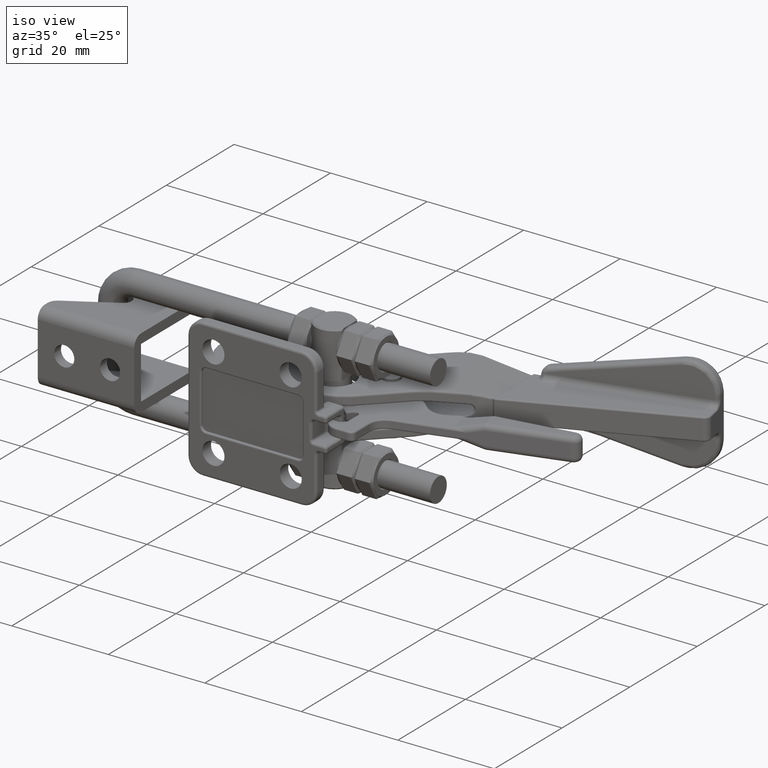
[diagram: clean part render]
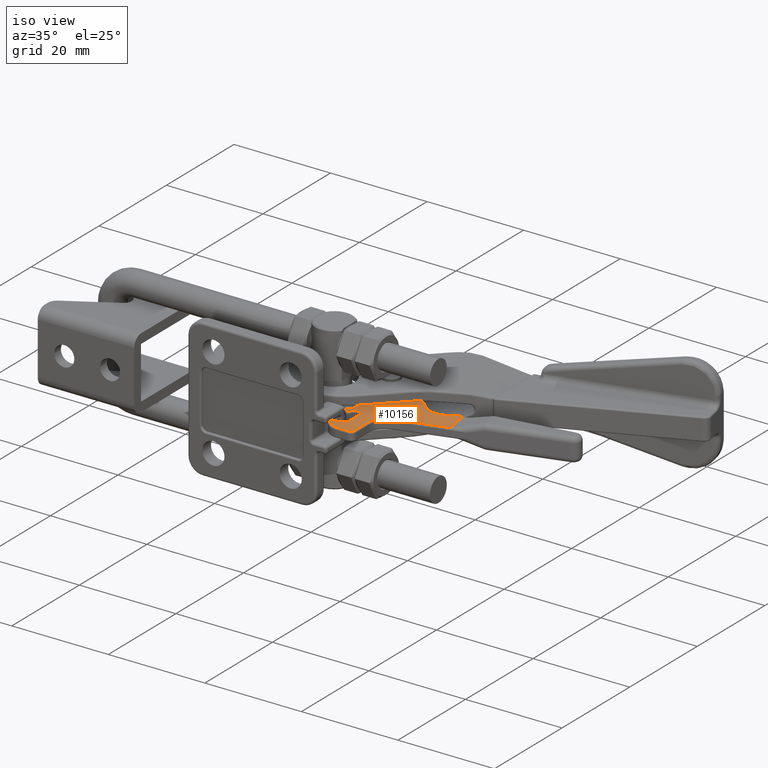
[diagram: same view with one face highlighted and labeled with its STEP entity id]
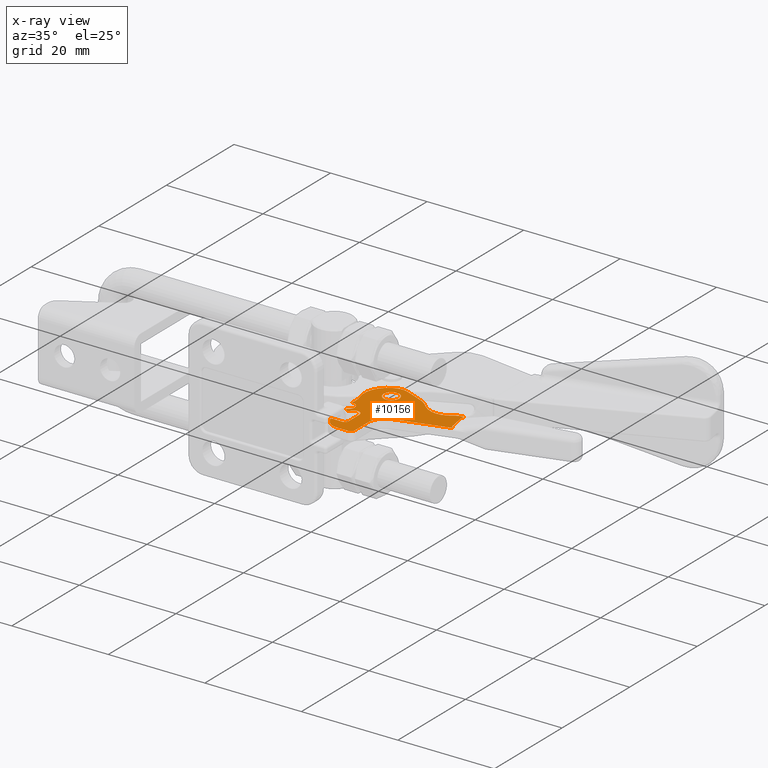
[diagram: x-ray of the same camera — body ghosted, the highlighted face saturated]
A machine part, iso view. The second image highlights one B-rep face of the part: STEP entity #10156.
The next image is the same camera in x-ray: the body ghosted, the highlighted face saturated — about 0% of this face is hidden behind the body in this view.
In plain terms, the highlighted planar face has unit normal (-0, -0, 1).
Its self-contained STEP definition (entity closure, byte-faithful):
#281=ELLIPSE('',#11136,16.2910343805634,3.28690624551075);
#282=ELLIPSE('',#11149,24.4621710384554,4.01621982107466);
#698=PLANE('',#11135);
#1119=LINE('',#18671,#1678);
#1120=LINE('',#18712,#1679);
#1121=LINE('',#18717,#1680);
#1122=LINE('',#18721,#1681);
#1123=LINE('',#18725,#1682);
#1124=LINE('',#18730,#1683);
#1125=LINE('',#18734,#1684);
#1126=LINE('',#18738,#1685);
#1127=LINE('',#18742,#1686);
#1128=LINE('',#18746,#1687);
#1129=LINE('',#18750,#1688);
#1130=LINE('',#18754,#1689);
#1131=LINE('',#18758,#1690);
#1678=VECTOR('',#13187,0.784645032631566);
#1679=VECTOR('',#13190,3.39002437134424);
#1680=VECTOR('',#13195,1.25012658674413);
#1681=VECTOR('',#13198,4.02103685123286);
#1682=VECTOR('',#13201,0.453546172397678);
#1683=VECTOR('',#13206,0.825948223247436);
#1684=VECTOR('',#13209,0.687219900329533);
#1685=VECTOR('',#13212,3.0810000000001);
#1686=VECTOR('',#13215,2.05399999999983);
#1687=VECTOR('',#13218,0.93743086693216);
#1688=VECTOR('',#13221,2.45038631699998);
#1689=VECTOR('',#13224,4.10799999999995);
#1690=VECTOR('',#13227,11.150687883678);
#2018=FACE_BOUND('',#3053,.T.);
#2341=FACE_OUTER_BOUND('',#3052,.T.);
#3052=EDGE_LOOP('',(#7809,#7810,#7811,#7812,#7813,#7814,#7815,#7816,#7817,
#7818,#7819,#7820,#7821,#7822,#7823,#7824,#7825,#7826,#7827,#7828,#7829,
#7830,#7831,#7832,#7833,#7834,#7835,#7836,#7837));
#3053=EDGE_LOOP('',(#7838));
#3746=CIRCLE('',#11051,1.3351);
#3796=CIRCLE('',#11133,2.7729);
#3797=CIRCLE('',#11137,4.4161);
#3798=CIRCLE('',#11138,4.8269);
#3799=CIRCLE('',#11139,3.2864);
#3800=CIRCLE('',#11140,5.019801871872);
#3801=CIRCLE('',#11141,4.4161);
#3802=CIRCLE('',#11142,0.2054000000026);
#3803=CIRCLE('',#11143,1.07835);
#3804=CIRCLE('',#11144,0.8216);
#3805=CIRCLE('',#11145,0.2053999999966);
#3806=CIRCLE('',#11146,2.7729);
#3807=CIRCLE('',#11147,0.7189000000001);
#3808=CIRCLE('',#11148,3.3891);
#3809=CIRCLE('',#11150,1.625351069519);
#4483=VERTEX_POINT('',#18347);
#4486=VERTEX_POINT('',#18365);
#4509=VERTEX_POINT('',#18664);
#4510=VERTEX_POINT('',#18666);
#4511=VERTEX_POINT('',#18670);
#4512=VERTEX_POINT('',#18710);
#4513=VERTEX_POINT('',#18711);
#4514=VERTEX_POINT('',#18714);
#4515=VERTEX_POINT('',#18716);
#4516=VERTEX_POINT('',#18718);
#4517=VERTEX_POINT('',#18720);
#4518=VERTEX_POINT('',#18722);
#4519=VERTEX_POINT('',#18724);
#4520=VERTEX_POINT('',#18726);
#4521=VERTEX_POINT('',#18729);
#4522=VERTEX_POINT('',#18731);
#4523=VERTEX_POINT('',#18733);
#4524=VERTEX_POINT('',#18735);
#4525=VERTEX_POINT('',#18737);
#4526=VERTEX_POINT('',#18739);
#4527=VERTEX_POINT('',#18741);
#4528=VERTEX_POINT('',#18743);
#4529=VERTEX_POINT('',#18745);
#4530=VERTEX_POINT('',#18747);
#4531=VERTEX_POINT('',#18749);
#4532=VERTEX_POINT('',#18751);
#4533=VERTEX_POINT('',#18753);
#4534=VERTEX_POINT('',#18755);
#4535=VERTEX_POINT('',#18757);
#4536=VERTEX_POINT('',#18760);
#5618=EDGE_CURVE('',#4486,#4483,#3746,.T.);
#5680=EDGE_CURVE('',#4509,#4510,#3796,.T.);
#5681=EDGE_CURVE('',#4511,#4509,#1119,.T.);
#5683=EDGE_CURVE('',#4512,#4513,#1120,.T.);
#5684=EDGE_CURVE('',#4513,#4511,#281,.T.);
#5685=EDGE_CURVE('',#4510,#4514,#3797,.T.);
#5686=EDGE_CURVE('',#4514,#4515,#1121,.T.);
#5687=EDGE_CURVE('',#4515,#4516,#3798,.T.);
#5688=EDGE_CURVE('',#4516,#4517,#1122,.T.);
#5689=EDGE_CURVE('',#4517,#4518,#3799,.T.);
#5690=EDGE_CURVE('',#4518,#4519,#1123,.T.);
#5691=EDGE_CURVE('',#4519,#4520,#3800,.T.);
#5692=EDGE_CURVE('',#4520,#4486,#3801,.T.);
#5693=EDGE_CURVE('',#4483,#4521,#1124,.T.);
#5694=EDGE_CURVE('',#4521,#4522,#3802,.T.);
#5695=EDGE_CURVE('',#4522,#4523,#1125,.T.);
#5696=EDGE_CURVE('',#4523,#4524,#3803,.T.);
#5697=EDGE_CURVE('',#4525,#4524,#1126,.T.);
#5698=EDGE_CURVE('',#4525,#4526,#3804,.T.);
#5699=EDGE_CURVE('',#4527,#4526,#1127,.T.);
#5700=EDGE_CURVE('',#4527,#4528,#3805,.T.);
#5701=EDGE_CURVE('',#4528,#4529,#1128,.T.);
#5702=EDGE_CURVE('',#4529,#4530,#3806,.T.);
#5703=EDGE_CURVE('',#4531,#4530,#1129,.T.);
#5704=EDGE_CURVE('',#4531,#4532,#3807,.T.);
#5705=EDGE_CURVE('',#4533,#4532,#1130,.T.);
#5706=EDGE_CURVE('',#4533,#4534,#3808,.T.);
#5707=EDGE_CURVE('',#4534,#4535,#1131,.T.);
#5708=EDGE_CURVE('',#4512,#4535,#282,.F.);
#5709=EDGE_CURVE('',#4536,#4536,#3809,.T.);
#7809=ORIENTED_EDGE('',*,*,#5683,.T.);
#7810=ORIENTED_EDGE('',*,*,#5684,.T.);
#7811=ORIENTED_EDGE('',*,*,#5681,.T.);
#7812=ORIENTED_EDGE('',*,*,#5680,.T.);
#7813=ORIENTED_EDGE('',*,*,#5685,.T.);
#7814=ORIENTED_EDGE('',*,*,#5686,.T.);
#7815=ORIENTED_EDGE('',*,*,#5687,.T.);
#7816=ORIENTED_EDGE('',*,*,#5688,.T.);
#7817=ORIENTED_EDGE('',*,*,#5689,.T.);
#7818=ORIENTED_EDGE('',*,*,#5690,.T.);
#7819=ORIENTED_EDGE('',*,*,#5691,.T.);
#7820=ORIENTED_EDGE('',*,*,#5692,.T.);
#7821=ORIENTED_EDGE('',*,*,#5618,.T.);
#7822=ORIENTED_EDGE('',*,*,#5693,.T.);
#7823=ORIENTED_EDGE('',*,*,#5694,.T.);
#7824=ORIENTED_EDGE('',*,*,#5695,.T.);
#7825=ORIENTED_EDGE('',*,*,#5696,.T.);
#7826=ORIENTED_EDGE('',*,*,#5697,.F.);
#7827=ORIENTED_EDGE('',*,*,#5698,.T.);
#7828=ORIENTED_EDGE('',*,*,#5699,.F.);
#7829=ORIENTED_EDGE('',*,*,#5700,.T.);
#7830=ORIENTED_EDGE('',*,*,#5701,.T.);
#7831=ORIENTED_EDGE('',*,*,#5702,.T.);
#7832=ORIENTED_EDGE('',*,*,#5703,.F.);
#7833=ORIENTED_EDGE('',*,*,#5704,.T.);
#7834=ORIENTED_EDGE('',*,*,#5705,.F.);
#7835=ORIENTED_EDGE('',*,*,#5706,.T.);
#7836=ORIENTED_EDGE('',*,*,#5707,.T.);
#7837=ORIENTED_EDGE('',*,*,#5708,.F.);
#7838=ORIENTED_EDGE('',*,*,#5709,.T.);
#10156=ADVANCED_FACE('',(#2341,#2018),#698,.T.);
#11051=AXIS2_PLACEMENT_3D('',#18403,#13012,#13013);
#11133=AXIS2_PLACEMENT_3D('',#18668,#13183,#13184);
#11135=AXIS2_PLACEMENT_3D('',#18709,#13188,#13189);
#11136=AXIS2_PLACEMENT_3D('',#18713,#13191,#13192);
#11137=AXIS2_PLACEMENT_3D('',#18715,#13193,#13194);
#11138=AXIS2_PLACEMENT_3D('',#18719,#13196,#13197);
#11139=AXIS2_PLACEMENT_3D('',#18723,#13199,#13200);
#11140=AXIS2_PLACEMENT_3D('',#18727,#13202,#13203);
#11141=AXIS2_PLACEMENT_3D('',#18728,#13204,#13205);
#11142=AXIS2_PLACEMENT_3D('',#18732,#13207,#13208);
#11143=AXIS2_PLACEMENT_3D('',#18736,#13210,#13211);
#11144=AXIS2_PLACEMENT_3D('',#18740,#13213,#13214);
#11145=AXIS2_PLACEMENT_3D('',#18744,#13216,#13217);
#11146=AXIS2_PLACEMENT_3D('',#18748,#13219,#13220);
#11147=AXIS2_PLACEMENT_3D('',#18752,#13222,#13223);
#11148=AXIS2_PLACEMENT_3D('',#18756,#13225,#13226);
#11149=AXIS2_PLACEMENT_3D('',#18759,#13228,#13229);
#11150=AXIS2_PLACEMENT_3D('',#18761,#13230,#13231);
#13012=DIRECTION('center_axis',(0.,0.,-1.));
#13013=DIRECTION('ref_axis',(-0.184703680974493,0.982794256309261,0.));
#13183=DIRECTION('center_axis',(0.,0.,1.));
#13184=DIRECTION('ref_axis',(-0.165047605863299,0.986285601536793,0.));
#13187=DIRECTION('',(-0.986285601537344,-0.165047605860007,0.));
#13188=DIRECTION('center_axis',(0.,0.,1.));
#13189=DIRECTION('ref_axis',(1.,0.,0.));
#13190=DIRECTION('',(-0.165047605861207,0.986285601537143,0.));
#13191=DIRECTION('center_axis',(-1.96015357480331E-13,4.20512153881486E-14,
-1.));
#13192=DIRECTION('ref_axis',(0.988674035034475,0.150078820786447,-1.87484297590714E-13));
#13193=DIRECTION('center_axis',(0.,0.,-1.));
#13194=DIRECTION('ref_axis',(0.62251701028537,-0.782606268761862,0.));
#13195=DIRECTION('',(-0.742051848678916,0.670342489979714,0.));
#13196=DIRECTION('center_axis',(0.,0.,1.));
#13197=DIRECTION('ref_axis',(0.670342489988594,0.742051848670894,0.));
#13198=DIRECTION('',(-0.926571280943953,0.376119211593722,0.));
#13199=DIRECTION('center_axis',(0.,0.,1.));
#13200=DIRECTION('ref_axis',(0.376119211593893,0.926571280943883,0.));
#13201=DIRECTION('',(-0.926571280959424,-0.376119211555609,0.));
#13202=DIRECTION('center_axis',(0.,0.,1.));
#13203=DIRECTION('ref_axis',(-0.428255032335312,0.903657914965326,0.));
#13204=DIRECTION('center_axis',(0.,0.,-1.));
#13205=DIRECTION('ref_axis',(0.941202495448575,0.337842955470991,0.));
#13206=DIRECTION('',(0.766044443117731,-0.642787609688026,-8.62829100138035E-13));
#13207=DIRECTION('center_axis',(-1.402174564564E-11,-8.855839355141E-12,
1.));
#13208=DIRECTION('ref_axis',(-0.642787609696186,-0.766044443110883,-1.57969708944173E-11));
#13209=DIRECTION('',(0.642787609686506,0.766044443119006,-1.03846142945501E-12));
#13210=DIRECTION('center_axis',(0.,0.,-1.));
#13211=DIRECTION('ref_axis',(-0.766044443127903,0.642787609675903,0.));
#13212=DIRECTION('',(0.,1.,0.));
#13213=DIRECTION('center_axis',(0.,0.,-1.));
#13214=DIRECTION('ref_axis',(1.,0.,0.));
#13215=DIRECTION('',(1.,1.66046987909E-13,-1.902621736458E-14));
#13216=DIRECTION('center_axis',(-1.475973225857E-12,3.689933064642E-13,
1.));
#13217=DIRECTION('ref_axis',(3.320939758232E-11,1.,-3.68993306415184E-13));
#13218=DIRECTION('',(0.513336470445789,-0.858187431806281,0.));
#13219=DIRECTION('center_axis',(0.,0.,1.));
#13220=DIRECTION('ref_axis',(-0.858187431800664,-0.513336470455179,0.));
#13221=DIRECTION('',(-1.,0.,0.));
#13222=DIRECTION('center_axis',(0.,0.,1.));
#13223=DIRECTION('ref_axis',(-9.488399309078E-12,-1.,0.));
#13224=DIRECTION('',(5.534899596963E-14,-1.,0.));
#13225=DIRECTION('center_axis',(0.,0.,-1.));
#13226=DIRECTION('ref_axis',(-1.,-7.044417668862E-13,0.));
#13227=DIRECTION('',(0.961261695938291,0.275637355817097,0.));
#13228=DIRECTION('center_axis',(-1.07498782402765E-9,-9.92111533582601E-10,
-1.));
#13229=DIRECTION('ref_axis',(0.955345301042404,0.29549171862541,-1.32014530848903E-9));
#13230=DIRECTION('center_axis',(0.,0.,-1.));
#13231=DIRECTION('ref_axis',(1.,0.,0.));
#18347=CARTESIAN_POINT('',(1271.34998035828,650.11986639666,0.924300000000031));
#18365=CARTESIAN_POINT('',(1270.703665536,652.7058546453,0.9243));
#18403=CARTESIAN_POINT('Origin',(1270.950263421,651.3937260337,0.9243));
#18664=CARTESIAN_POINT('',(1289.111232252,658.8802799124,0.9243));
#18666=CARTESIAN_POINT('',(1287.842715341,658.3154974909,0.9243));
#18668=CARTESIAN_POINT('Origin',(1289.568892759,656.1454085679,0.9243));
#18670=CARTESIAN_POINT('',(1289.88511635,659.0097836965,0.9243));
#18671=CARTESIAN_POINT('',(1289.88511635,659.0097836965,0.9243));
#18709=CARTESIAN_POINT('Origin',(1282.133318502,717.8339134774,0.9243));
#18710=CARTESIAN_POINT('',(1290.167878815,654.8910425357,0.9243));
#18711=CARTESIAN_POINT('',(1289.608363408,658.2345747619,0.9243));
#18712=CARTESIAN_POINT('',(1290.167878815,654.8910425357,0.9243));
#18713=CARTESIAN_POINT('Origin',(1305.71331709482,660.68935162036,0.924299999996969));
#18714=CARTESIAN_POINT('',(1282.133318502,658.4945898654,0.9243));
#18715=CARTESIAN_POINT('Origin',(1285.093617972,661.7715650343,0.9243));
#18716=CARTESIAN_POINT('',(1281.205659757,659.3326028341,0.9243));
#18717=CARTESIAN_POINT('',(1282.133318502,658.4945898654,0.9243));
#18718=CARTESIAN_POINT('',(1279.785473415,660.2232596818,0.9243));
#18719=CARTESIAN_POINT('Origin',(1277.969983593,655.7507927658,0.9243));
#18720=CARTESIAN_POINT('',(1276.059696149,661.735648892,0.9243));
#18721=CARTESIAN_POINT('',(1279.785473415,660.2232596817,0.9243));
#18722=CARTESIAN_POINT('',(1273.587539795,661.735648892,0.9243));
#18723=CARTESIAN_POINT('Origin',(1274.823617972,658.6905650343,0.9243));
#18724=CARTESIAN_POINT('',(1273.167296937,661.5650614634,0.9243));
#18725=CARTESIAN_POINT('',(1273.587539795,661.735648892,0.9243));
#18726=CARTESIAN_POINT('',(1270.592402302,655.3329730692,0.9243));
#18727=CARTESIAN_POINT('Origin',(1275.31705235,657.0288777701,0.9243));
#18728=CARTESIAN_POINT('Origin',(1266.435957961,653.8410247936,0.9243));
#18729=CARTESIAN_POINT('',(1271.982693406,649.5889571137,0.9242999999993));
#18730=CARTESIAN_POINT('',(1271.349980362,650.1198663958,0.9243));
#18731=CARTESIAN_POINT('',(1272.27206751,649.6142740673,0.9243000000022));
#18732=CARTESIAN_POINT('Origin',(1272.114721981,649.7463026423,0.9243000000011));
#18733=CARTESIAN_POINT('',(1272.713803947,650.1407150532,0.9243));
#18734=CARTESIAN_POINT('',(1272.27206751,649.6142740673,0.9243000000007));
#18735=CARTESIAN_POINT('',(1274.618217972,649.4475650343,0.9243));
#18736=CARTESIAN_POINT('Origin',(1273.539867972,649.4475650343,0.9243));
#18737=CARTESIAN_POINT('',(1274.618217972,646.3665650343,0.9243));
#18738=CARTESIAN_POINT('',(1274.618217972,646.3665650343,0.9243));
#18739=CARTESIAN_POINT('',(1273.796617972,645.5449650343,0.9243));
#18740=CARTESIAN_POINT('Origin',(1273.796617972,646.3665650343,0.9243));
#18741=CARTESIAN_POINT('',(1271.742617972,645.5449650343,0.9243000000001));
#18742=CARTESIAN_POINT('',(1271.742617972,645.5449650343,0.9243000000001));
#18743=CARTESIAN_POINT('',(1271.566346273,645.2341257233,0.9243));
#18744=CARTESIAN_POINT('Origin',(1271.742617972,645.3395650343,0.9243000000002));
#18745=CARTESIAN_POINT('',(1272.047563726,644.4296343354,0.9243));
#18746=CARTESIAN_POINT('',(1271.566346273,645.2341257233,0.9243));
#18747=CARTESIAN_POINT('',(1274.427231655,643.0801650343,0.9243));
#18748=CARTESIAN_POINT('Origin',(1274.427231655,645.8530650343,0.9243));
#18749=CARTESIAN_POINT('',(1276.877617972,643.0801650343,0.9243));
#18750=CARTESIAN_POINT('',(1276.877617972,643.0801650343,0.9243));
#18751=CARTESIAN_POINT('',(1277.596517972,643.7990650343,0.9243));
#18752=CARTESIAN_POINT('Origin',(1276.877617972,643.7990650343,0.9243));
#18753=CARTESIAN_POINT('',(1277.596517972,647.9070650343,0.9243));
#18754=CARTESIAN_POINT('',(1277.596517972,647.9070650343,0.9243));
#18755=CARTESIAN_POINT('',(1280.051455409,651.1648770481,0.9243));
#18756=CARTESIAN_POINT('Origin',(1280.985617972,647.9070650343,0.9243));
#18757=CARTESIAN_POINT('',(1290.770184555,654.2384231717,0.9243));
#18758=CARTESIAN_POINT('',(1280.051455409,651.1648770481,0.9243));
#18759=CARTESIAN_POINT('Origin',(1313.55817750584,662.033096111304,0.92429996777));
#18760=CARTESIAN_POINT('',(1273.19826690248,658.6905650343,0.9243));
#18761=CARTESIAN_POINT('Origin',(1274.823617972,658.6905650343,0.9243));